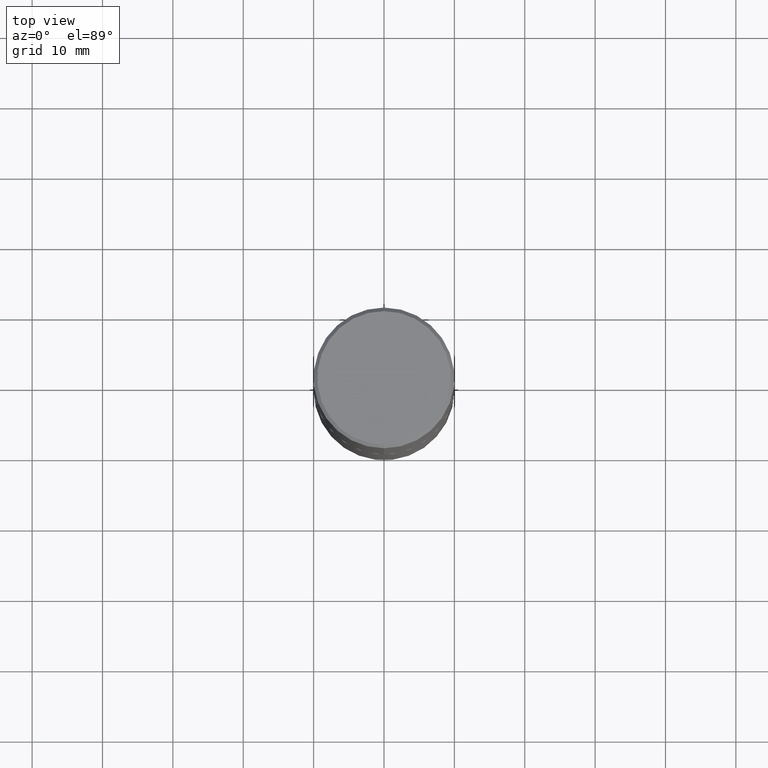
[diagram: clean part render]
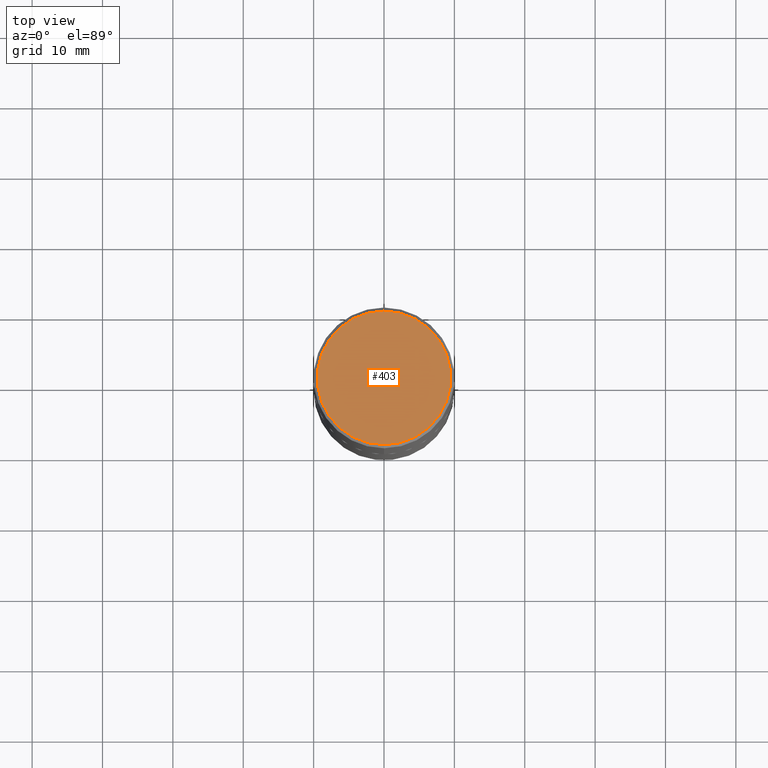
[diagram: same view with one face highlighted and labeled with its STEP entity id]
A machine part, top view. The second image highlights one B-rep face of the part: STEP entity #403.
In plain terms, the highlighted planar face has unit normal (0, -0, -1).
Its self-contained STEP definition (entity closure, byte-faithful):
#66 = VERTEX_POINT ( 'NONE', #387 ) ;
#72 = EDGE_CURVE ( 'NONE', #66, #220, #77, .T. ) ;
#77 = CIRCLE ( 'NONE', #347, 0.3737000000000003097 ) ;
#85 = DIRECTION ( 'NONE',  ( -2.447902336346030930E-29, 3.487996385144809755E-15, 1.000000000000000000 ) ) ;
#90 = EDGE_LOOP ( 'NONE', ( #358, #296 ) ) ;
#111 = AXIS2_PLACEMENT_3D ( 'NONE', #410, #85, #217 ) ;
#118 = AXIS2_PLACEMENT_3D ( 'NONE', #395, #225, #262 ) ;
#186 = PLANE ( 'NONE',  #118 ) ;
#209 = CARTESIAN_POINT ( 'NONE',  ( 2.679362779428221496E-15, 0.3737000000000003097, -1.526729225810905823E-15 ) ) ;
#216 = FACE_OUTER_BOUND ( 'NONE', #90, .T. ) ;
#217 = DIRECTION ( 'NONE',  ( -6.982962677686265922E-15, -1.000000000000000000, 3.487996385144809755E-15 ) ) ;
#220 = VERTEX_POINT ( 'NONE', #209 ) ;
#222 = CARTESIAN_POINT ( 'NONE',  ( 5.465308580448185111E-45, -7.787474315972660237E-31, -2.232649766822894597E-16 ) ) ;
#225 = DIRECTION ( 'NONE',  ( 2.447902336346030930E-29, -3.487996385144809360E-15, -1.000000000000000000 ) ) ;
#262 = DIRECTION ( 'NONE',  ( 6.982962677686265922E-15, 1.000000000000000000, -3.487996385144809360E-15 ) ) ;
#296 = ORIENTED_EDGE ( 'NONE', *, *, #72, .T. ) ;
#347 = AXIS2_PLACEMENT_3D ( 'NONE', #222, #384, #351 ) ;
#351 = DIRECTION ( 'NONE',  ( -6.982962677686265922E-15, -1.000000000000000000, 3.487996385144809755E-15 ) ) ;
#358 = ORIENTED_EDGE ( 'NONE', *, *, #364, .T. ) ;
#364 = EDGE_CURVE ( 'NONE', #220, #66, #370, .T. ) ;
#370 = CIRCLE ( 'NONE', #111, 0.3737000000000003097 ) ;
#384 = DIRECTION ( 'NONE',  ( -2.447902336346030930E-29, 3.487996385144809755E-15, 1.000000000000000000 ) ) ;
#387 = CARTESIAN_POINT ( 'NONE',  ( -2.632373081744937104E-15, -0.3737000000000003097, 1.080199272446327100E-15 ) ) ;
#395 = CARTESIAN_POINT ( 'NONE',  ( 2.609533152651359776E-15, 0.3737000000000003097, -1.415096737469761438E-15 ) ) ;
#403 = ADVANCED_FACE ( 'NONE', ( #216 ), #186, .F. ) ;
#410 = CARTESIAN_POINT ( 'NONE',  ( 5.465308580448185111E-45, -7.787474315972660237E-31, -2.232649766822894597E-16 ) ) ;